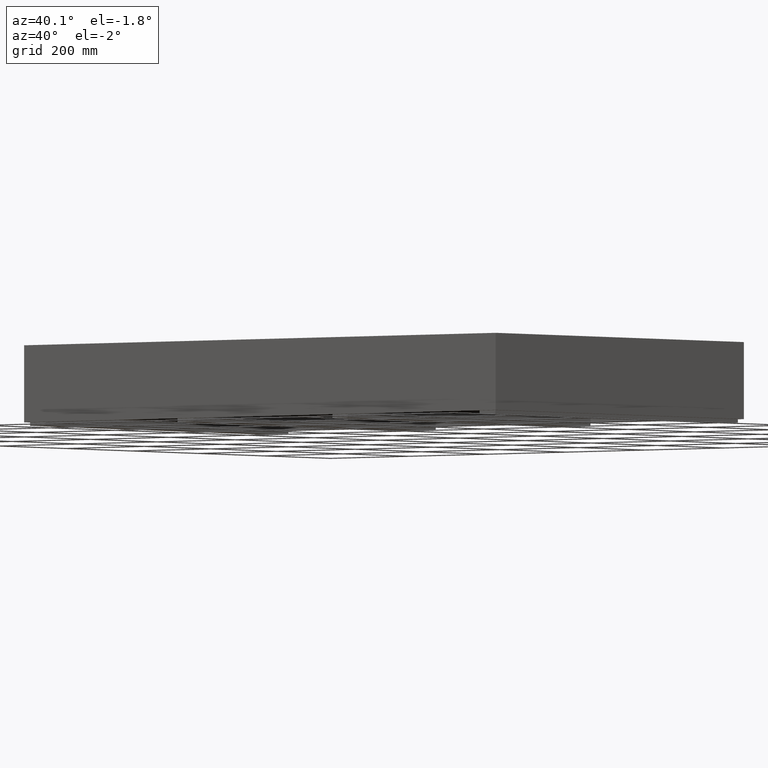
[diagram: clean part render]
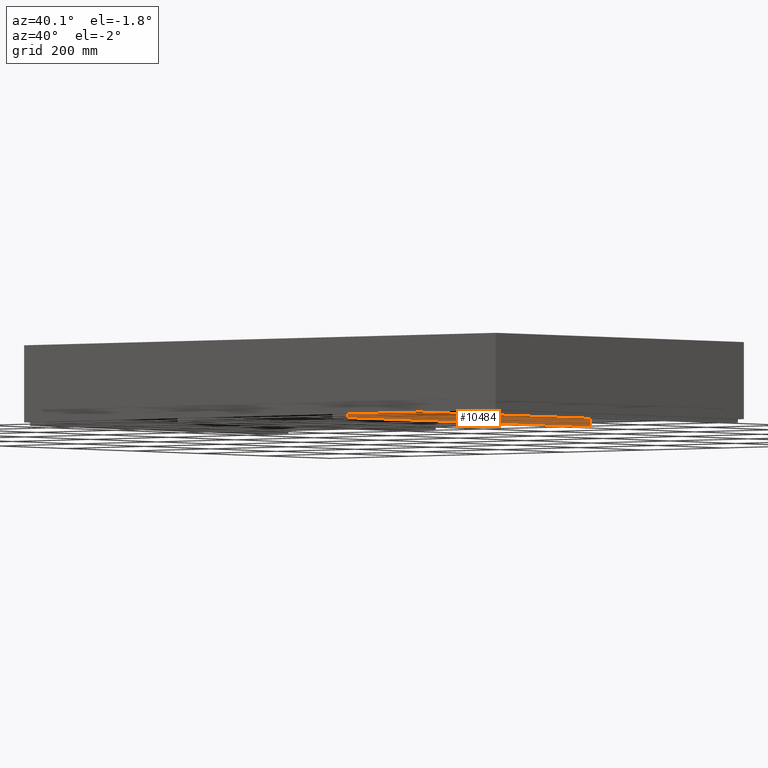
[diagram: same view with one face highlighted and labeled with its STEP entity id]
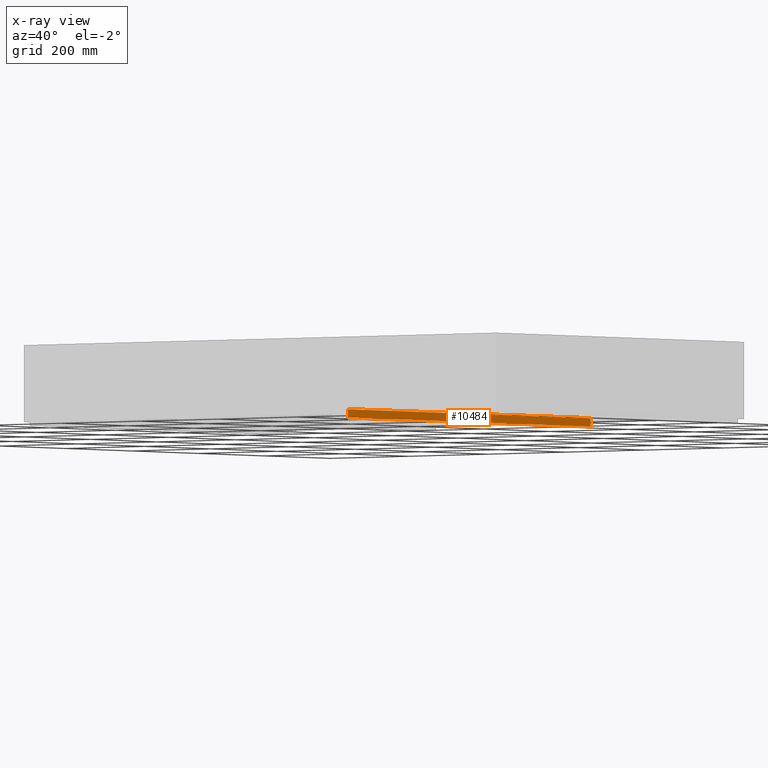
[diagram: x-ray of the same camera — body ghosted, the highlighted face saturated]
A machine part, auxiliary view. The second image highlights one B-rep face of the part: STEP entity #10484.
The next image is the same camera in x-ray: the body ghosted, the highlighted face saturated — about 2% of this face is hidden behind the body in this view.
In plain terms, the highlighted planar face has unit normal (-1, 0, 0).
Its self-contained STEP definition (entity closure, byte-faithful):
#242 = ORIENTED_EDGE ( 'NONE', *, *, #18326, .T. ) ;
#1110 = CARTESIAN_POINT ( 'NONE',  ( 816.8399999999999181, 8.499999999999952038, -157.0000000000003695 ) ) ;
#1695 = CARTESIAN_POINT ( 'NONE',  ( 816.8400000000000318, 741.4999000000001388, -157.0000000000003695 ) ) ;
#1829 = CARTESIAN_POINT ( 'NONE',  ( 816.8400000000000318, 741.4999000000001388, -141.0000000000003411 ) ) ;
#1923 = EDGE_LOOP ( 'NONE', ( #12462, #13264, #3962, #242 ) ) ;
#2007 = VECTOR ( 'NONE', #15098, 1000.000000000000000 ) ;
#2146 = EDGE_CURVE ( 'NONE', #17597, #17791, #14001, .T. ) ;
#2817 = CARTESIAN_POINT ( 'NONE',  ( 816.8399999999999181, 8.499999999999952038, -141.0000000000003411 ) ) ;
#3118 = DIRECTION ( 'NONE',  ( -1.000000000000000000, 1.514629162466674743E-16, 1.423362852083534639E-16 ) ) ;
#3962 = ORIENTED_EDGE ( 'NONE', *, *, #15001, .F. ) ;
#4534 = FACE_OUTER_BOUND ( 'NONE', #1923, .T. ) ;
#4854 = VECTOR ( 'NONE', #6862, 1000.000000000000000 ) ;
#5051 = CARTESIAN_POINT ( 'NONE',  ( 816.8400000000000318, 741.4999000000001388, -157.0000000000003695 ) ) ;
#6862 = DIRECTION ( 'NONE',  ( 1.423362852083534639E-16, 0.0000000000000000000, 1.000000000000000000 ) ) ;
#7438 = DIRECTION ( 'NONE',  ( -1.514629162466674743E-16, -1.000000000000000000, 0.0000000000000000000 ) ) ;
#7574 = DIRECTION ( 'NONE',  ( -1.514629162466674743E-16, -1.000000000000000000, 0.0000000000000000000 ) ) ;
#8873 = DIRECTION ( 'NONE',  ( -1.514629162466674743E-16, -1.000000000000000000, 0.0000000000000000000 ) ) ;
#9274 = EDGE_CURVE ( 'NONE', #13027, #17791, #14723, .T. ) ;
#9361 = CARTESIAN_POINT ( 'NONE',  ( 816.8400000000000318, 741.4999000000001388, -157.0000000000003695 ) ) ;
#10271 = PLANE ( 'NONE',  #17690 ) ;
#10327 = CARTESIAN_POINT ( 'NONE',  ( 816.8400000000000318, 741.4999000000001388, -141.0000000000003411 ) ) ;
#10484 = ADVANCED_FACE ( 'NONE', ( #4534 ), #10271, .F. ) ;
#12462 = ORIENTED_EDGE ( 'NONE', *, *, #9274, .T. ) ;
#13027 = VERTEX_POINT ( 'NONE', #10327 ) ;
#13264 = ORIENTED_EDGE ( 'NONE', *, *, #2146, .F. ) ;
#13498 = LINE ( 'NONE', #9361, #2007 ) ;
#13663 = VECTOR ( 'NONE', #7438, 1000.000000000000000 ) ;
#14001 = LINE ( 'NONE', #1110, #4854 ) ;
#14060 = VECTOR ( 'NONE', #7574, 1000.000000000000000 ) ;
#14584 = LINE ( 'NONE', #1695, #13663 ) ;
#14723 = LINE ( 'NONE', #1829, #14060 ) ;
#15001 = EDGE_CURVE ( 'NONE', #16791, #17597, #14584, .T. ) ;
#15098 = DIRECTION ( 'NONE',  ( 1.423362852083534639E-16, 0.0000000000000000000, 1.000000000000000000 ) ) ;
#15998 = CARTESIAN_POINT ( 'NONE',  ( 816.8400000000000318, 741.4999000000001388, -157.0000000000003695 ) ) ;
#16382 = CARTESIAN_POINT ( 'NONE',  ( 816.8399999999999181, 8.499999999999952038, -157.0000000000003695 ) ) ;
#16791 = VERTEX_POINT ( 'NONE', #5051 ) ;
#17597 = VERTEX_POINT ( 'NONE', #16382 ) ;
#17690 = AXIS2_PLACEMENT_3D ( 'NONE', #15998, #3118, #8873 ) ;
#17791 = VERTEX_POINT ( 'NONE', #2817 ) ;
#18326 = EDGE_CURVE ( 'NONE', #16791, #13027, #13498, .T. ) ;